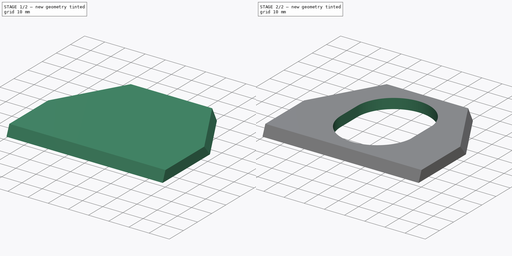
[diagram: build sequence overview — one tinted view per stage of 2, left to right]
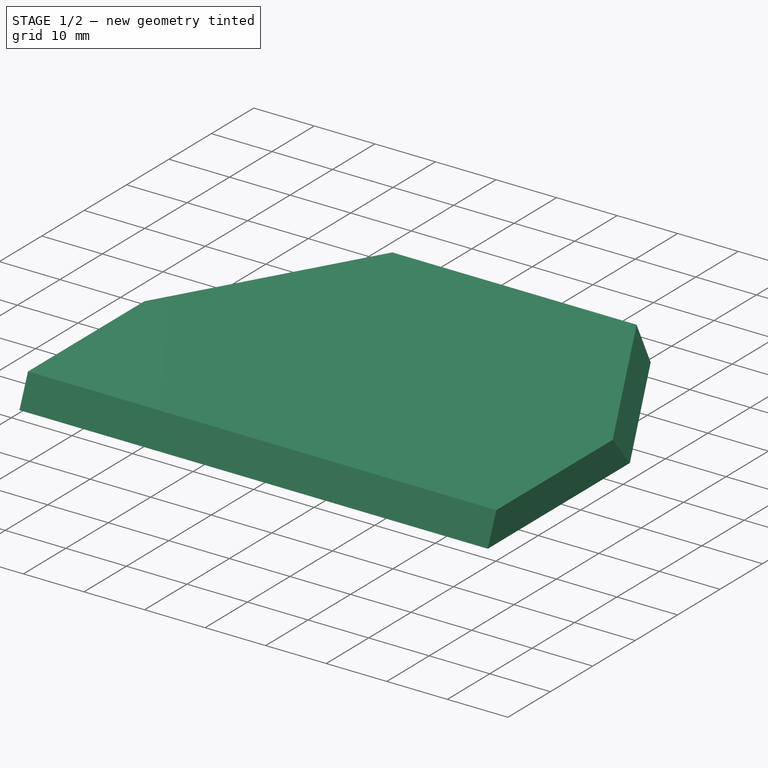
[diagram: stage 1 of 2 — iso view after this stage's code; geometry added in this stage tinted green]
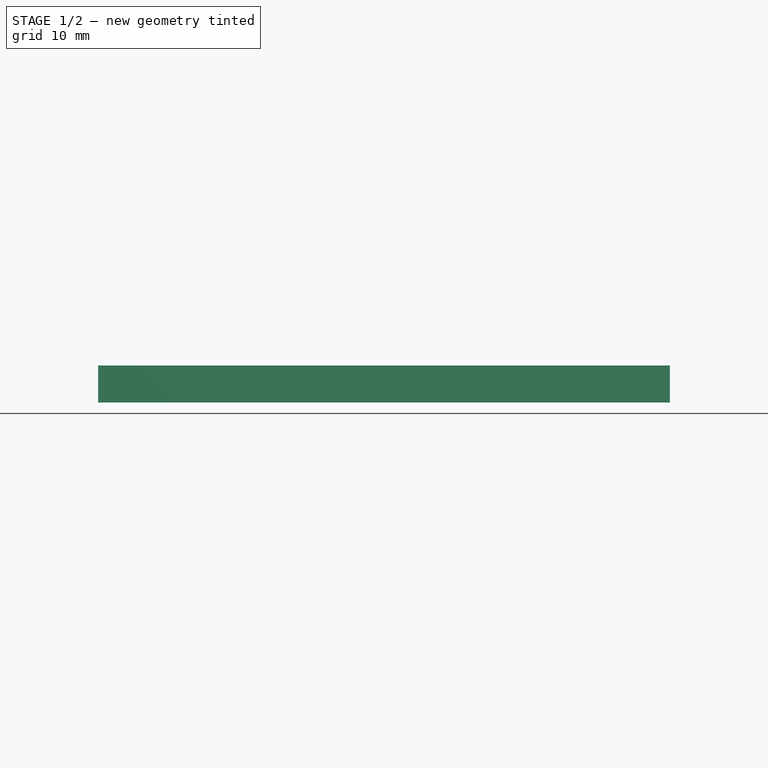
[diagram: stage 1 of 2 — front view after this stage's code; geometry added in this stage tinted green]
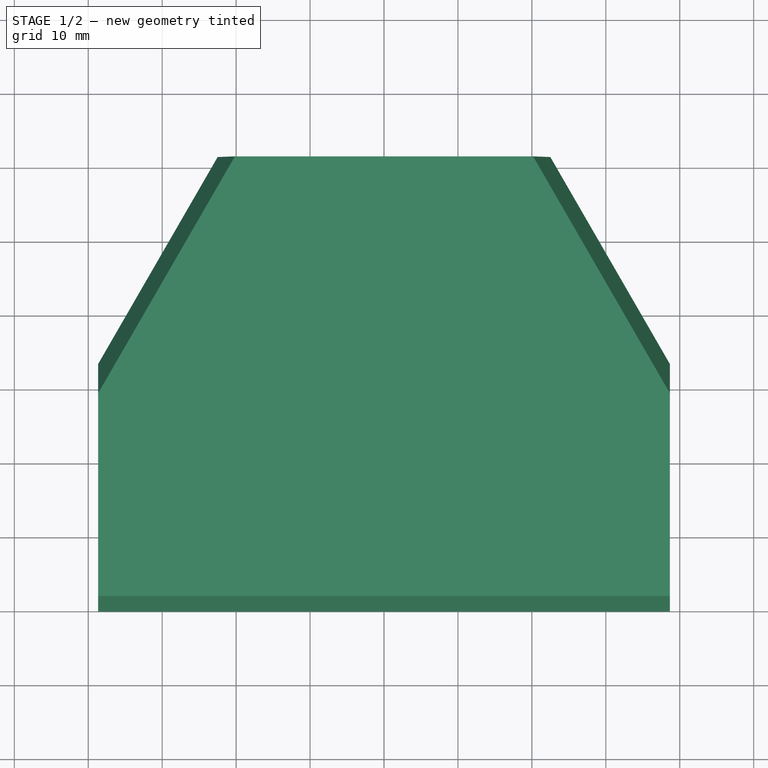
[diagram: stage 1 of 2 — top view after this stage's code; geometry added in this stage tinted green]
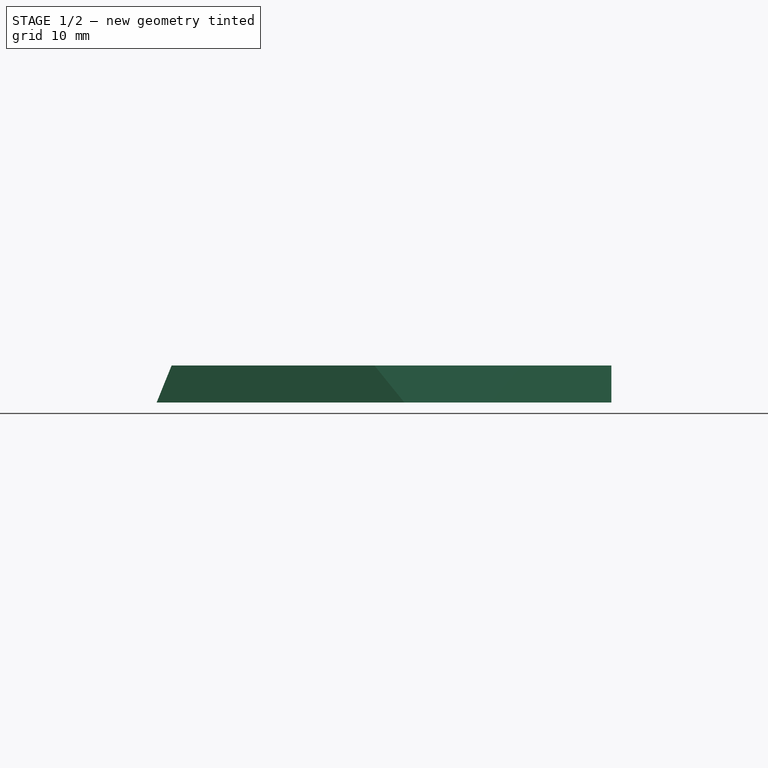
[diagram: stage 1 of 2 — right view after this stage's code; geometry added in this stage tinted green]
FCSTD DOCUMENT  (FreeCAD 0.18R16117 (Git))
Label: manfrotto_adapter_plate
License: All rights reserved
LicenseURL: http://en.wikipedia.org/wiki/All_rights_reserved
objects: Sketcher::SketchObject×2, PartDesign::Pad×1, PartDesign::Draft×1, PartDesign::Pocket×1, PartDesign::Body×1
note: 8 computed .brp shape members not serialized (recipe doc carries the construction recipe); baked Part::Feature solids carry a one-line shape summary decoded from their .brp

FEATURE [Sketcher::SketchObject] Sketch
  MapMode = 5
  Support = -> [XY_Plane]
  sketch-geometry (6):
    g0: LineSegment StartX=-22.5 StartY=61.5 StartZ=0 EndX=22.5 EndY=61.5 EndZ=0
    g1: LineSegment StartX=22.5 StartY=61.5 StartZ=0 EndX=38.6658 EndY=33.5 EndZ=0
    g2: LineSegment StartX=38.6658 StartY=33.5 StartZ=0 EndX=38.6658 EndY=0 EndZ=0
    g3: LineSegment StartX=38.6658 StartY=0 StartZ=0 EndX=-38.6658 EndY=0 EndZ=0
    g4: LineSegment StartX=-38.6658 StartY=0 StartZ=0 EndX=-38.6658 EndY=33.5 EndZ=0
    g5: LineSegment StartX=-38.6658 StartY=33.5 StartZ=0 EndX=-22.5 EndY=61.5 EndZ=0
  constraints (18):
    c: Coincident(g0,g1)
    c: Coincident(g1,g2)
    c: Coincident(g2,g3)
    c: Coincident(g3,g4)
    c: Coincident(g4,g5)
    c: Coincident(g5,g0)
    c: Vertical(g4)
    c: Vertical(g2)
    c: DistanceX(g3,g3) = 77.3316
    c: DistanceX(g0,g0) = 45
    c: Symmetric(g2,g3,g-2)
    c: Symmetric(g0,g0,g-2)
    c: Horizontal(g1,g4)
    c: DistanceY(g2,g0) = 61.5
    c: DistanceY(g2,g2) = 33.5
    c: PointOnObject(g-1,g3)
    c: Angle(g1,g2) = 2.61799
    c: DistanceY(g1,g0) = 28
FEATURE [PartDesign::Pad] Pad
  Length = 5
  Length2 = 100
  Profile = -> Sketch
  Type = 0
FEATURE [PartDesign::Draft] Draft
  Angle = 22
  Base = -> Pad [Face6,Face2,Face4]
  BaseFeature = -> Pad
  NeutralPlane = -> Pad [Face7]
  PullDirection = -> Pad [Edge8]
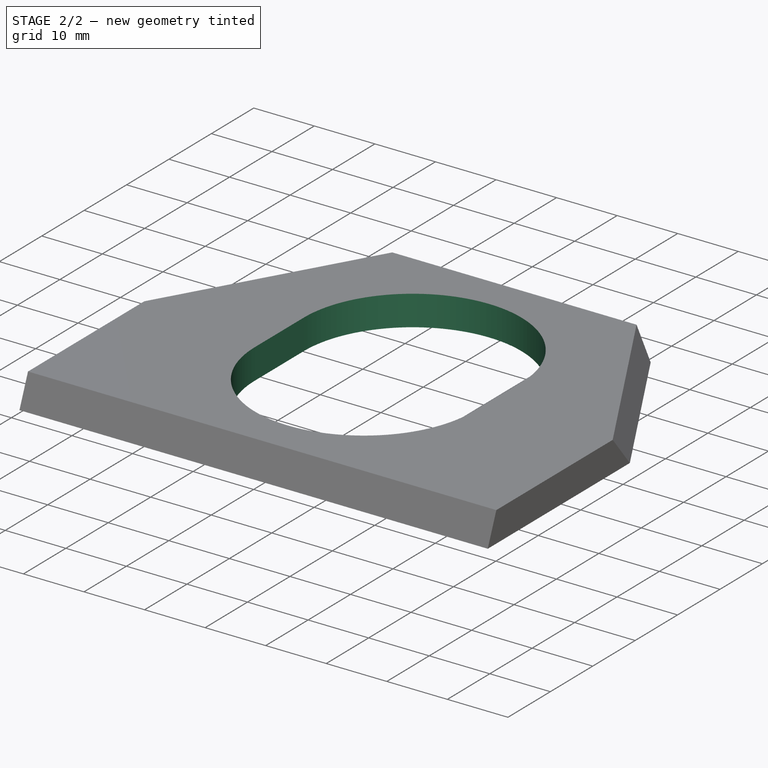
[diagram: stage 2 of 2 — iso view after this stage's code; geometry added in this stage tinted green]
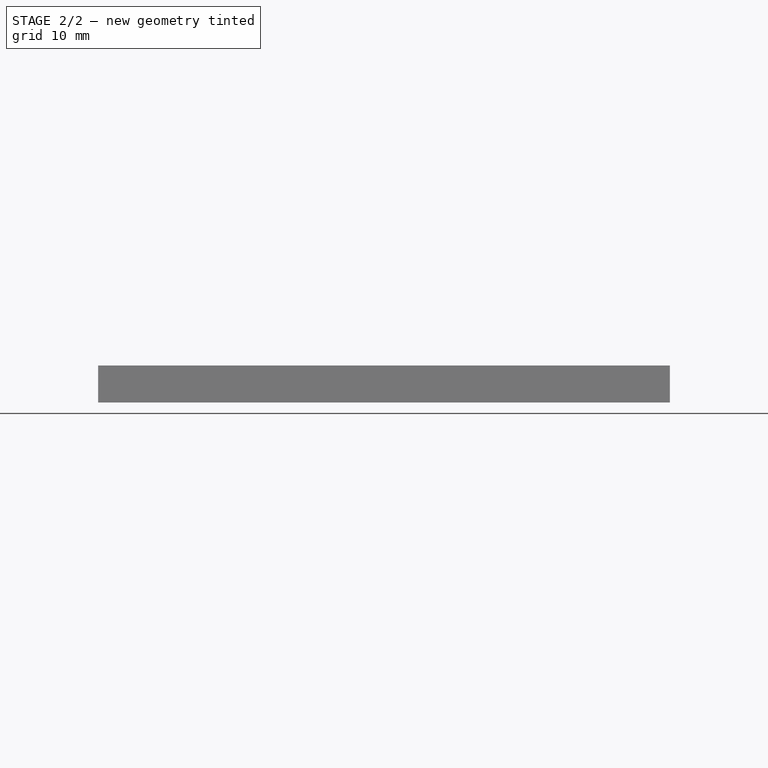
[diagram: stage 2 of 2 — front view after this stage's code; geometry added in this stage tinted green]
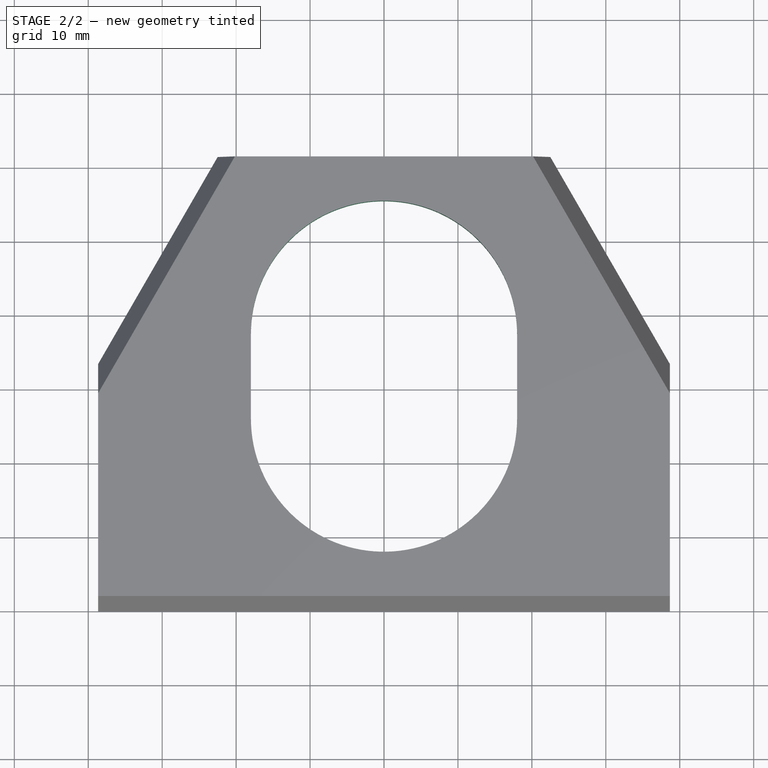
[diagram: stage 2 of 2 — top view after this stage's code; geometry added in this stage tinted green]
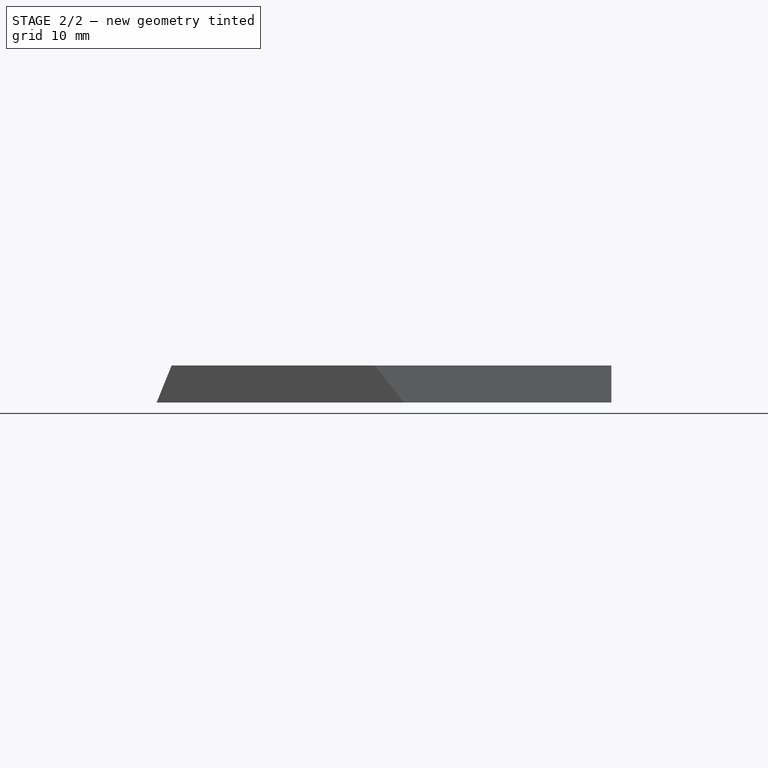
[diagram: stage 2 of 2 — right view after this stage's code; geometry added in this stage tinted green]
FEATURE [Sketcher::SketchObject] Sketch001
  ExternalGeometry = -> [Draft]
  MapMode = 5
  Placement = pos=(0,0,5) rot=(0,0,1;0rad)
  Support = -> [Draft]
  expr: Constraints[9] = Constraints.dist
  expr: Constraints.dist = Sketch001.Constraints.radii + 6mm
  sketch-geometry (4):
    g0: ArcOfCircle CenterX=0 CenterY=37.5 CenterZ=0 NormalX=0 NormalY=0 NormalZ=1 AngleXU=0 Radius=18 StartAngle=-4.636e-13 EndAngle=3.14159
    g1: ArcOfCircle CenterX=-1.36e-14 CenterY=26.0201 CenterZ=0 NormalX=0 NormalY=0 NormalZ=1 AngleXU=0 Radius=18 StartAngle=3.14159 EndAngle=6.28319
    g2: LineSegment StartX=-18 StartY=37.5 StartZ=0 EndX=-18 EndY=26.0201 EndZ=0
    g3: LineSegment StartX=18 StartY=37.5 StartZ=0 EndX=18 EndY=26.0201 EndZ=0
  constraints (10):
    c: Tangent(g0,g3) = 1.5708
    c: Tangent(g0,g2) = -1.5708
    c: Tangent(g2,g1) = -1.5708
    c: Tangent(g3,g1) = 1.5708
    c: Vertical(g2)
    c: Equal(g0,g1)
    c: PointOnObject(g0,g-2)
    c: DistanceX(g0,g0) = 18  'radii'
    c: DistanceY(g0,g-4) = 24  'dist'
    c: DistanceY(g-3,g1) = 24
FEATURE [PartDesign::Pocket] Pocket
  BaseFeature = -> Draft
  Length = 5
  Length2 = 100
  Profile = -> Sketch001
  Type = 1
FEATURE [PartDesign::Body] Body
  Group = -> [Sketch,Pad,Draft,Sketch001,Pocket]
  Origin = -> Origin
  Tip = -> Pocket
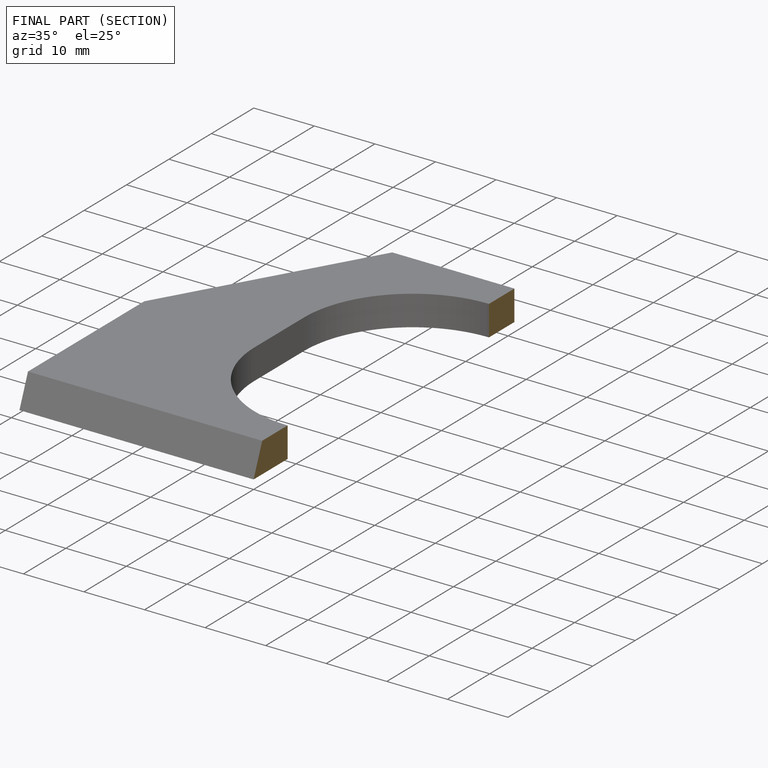
[diagram: finished part — half-section view (interior)]
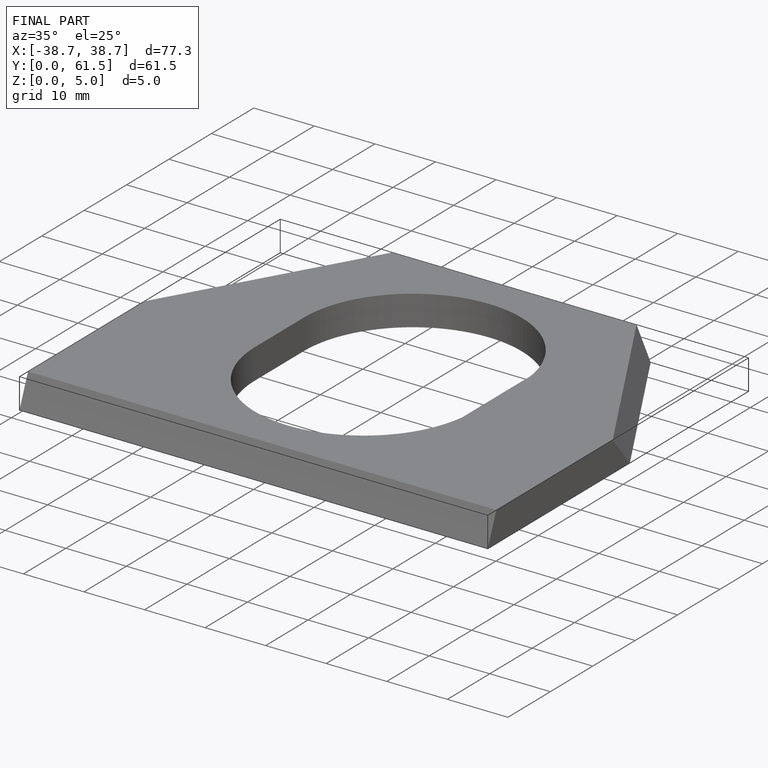
[diagram: finished part — iso view with bounding-box wireframe]
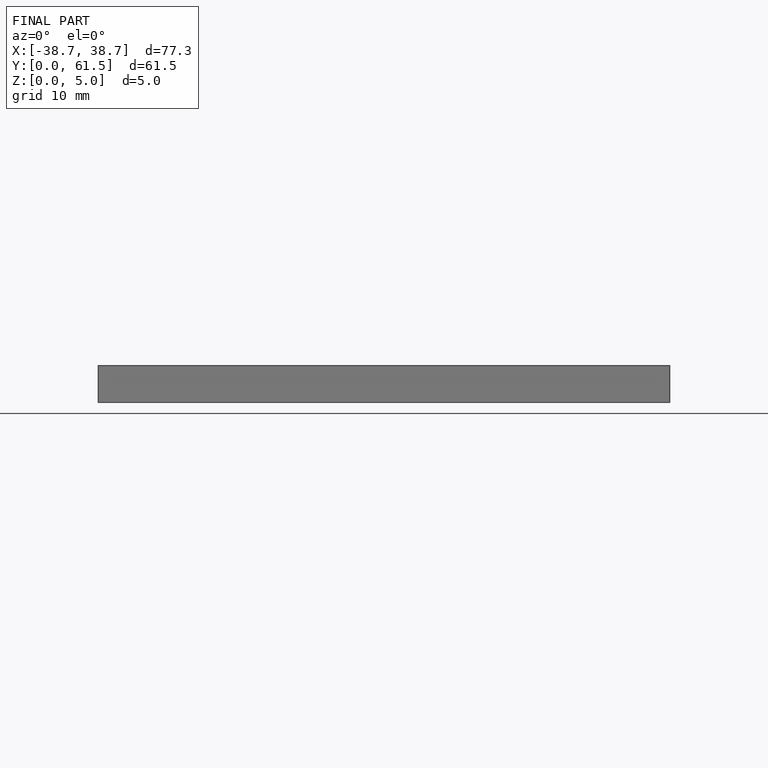
[diagram: finished part — front view with bounding-box wireframe]
